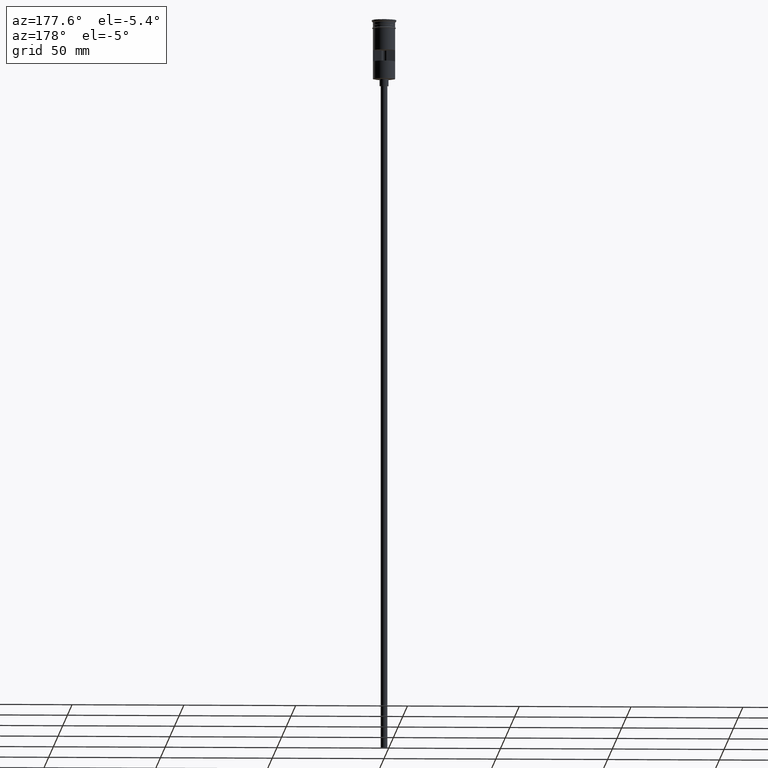
[diagram: clean part render]
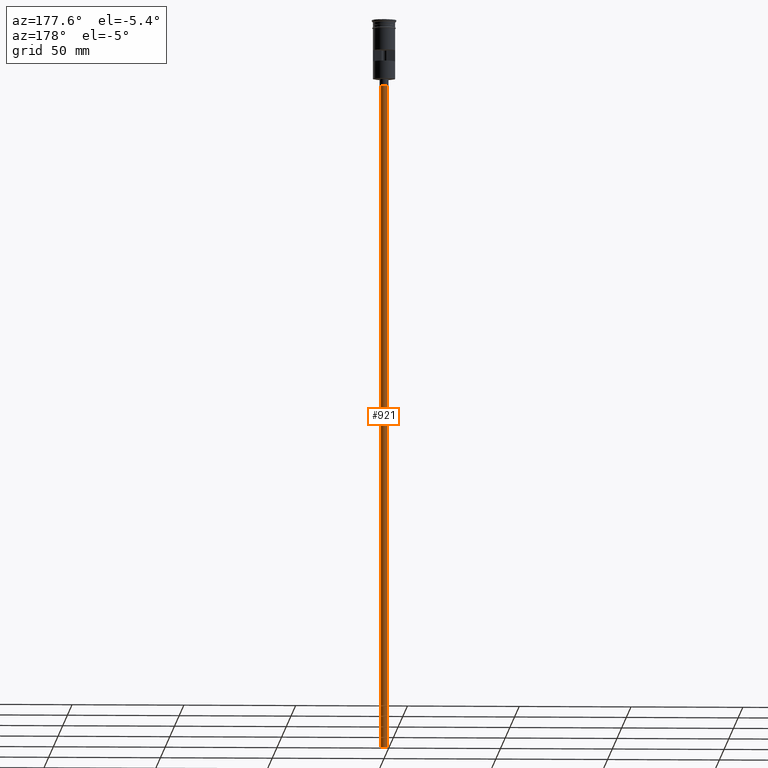
[diagram: same view with one face highlighted and labeled with its STEP entity id]
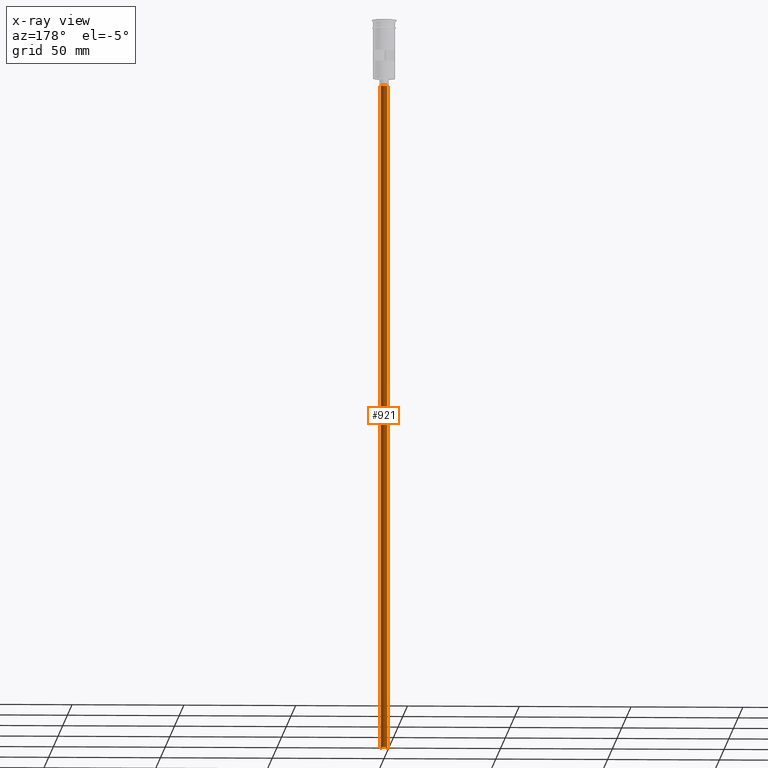
[diagram: x-ray of the same camera — body ghosted, the highlighted face saturated]
A machine part, auxiliary view. The second image highlights one B-rep face of the part: STEP entity #921.
The next image is the same camera in x-ray: the body ghosted, the highlighted face saturated — about 0% of this face is hidden behind the body in this view.
In plain terms, the highlighted cylindrical surface (edge-blend (fillet) strip) has radius 1.5 mm, axis along (-0, -0, 1).
Its self-contained STEP definition (entity closure, byte-faithful):
#111 = CIRCLE ( 'NONE', #1142, 1.500000000000000222 ) ;
#141 = EDGE_CURVE ( 'NONE', #1360, #478, #1465, .T. ) ;
#166 = LINE ( 'NONE', #314, #1190 ) ;
#171 = AXIS2_PLACEMENT_3D ( 'NONE', #843, #1106, #1605 ) ;
#262 = VERTEX_POINT ( 'NONE', #297 ) ;
#297 = CARTESIAN_POINT ( 'NONE',  ( 1.500000000000000222, 0.000000000000000000, -29.50000000000000000 ) ) ;
#314 = CARTESIAN_POINT ( 'NONE',  ( 1.500000000000000222, 0.000000000000000000, -326.5000000000000000 ) ) ;
#353 = EDGE_CURVE ( 'NONE', #427, #262, #166, .T. ) ;
#427 = VERTEX_POINT ( 'NONE', #1147 ) ;
#478 = VERTEX_POINT ( 'NONE', #900 ) ;
#485 = FACE_OUTER_BOUND ( 'NONE', #1410, .T. ) ;
#526 = ORIENTED_EDGE ( 'NONE', *, *, #353, .F. ) ;
#567 = CARTESIAN_POINT ( 'NONE',  ( -1.500000000000000222, 1.836970198721030181E-16, -326.5000000000000000 ) ) ;
#606 = DIRECTION ( 'NONE',  ( -1.000000000000000000, 0.000000000000000000, 0.000000000000000000 ) ) ;
#623 = CARTESIAN_POINT ( 'NONE',  ( -1.500000000000000222, 1.836970198721030181E-16, -326.5000000000000000 ) ) ;
#680 = DIRECTION ( 'NONE',  ( -1.000000000000000000, 0.000000000000000000, 0.000000000000000000 ) ) ;
#721 = CARTESIAN_POINT ( 'NONE',  ( 0.000000000000000000, 0.000000000000000000, -326.5000000000000000 ) ) ;
#843 = CARTESIAN_POINT ( 'NONE',  ( 0.000000000000000000, 0.000000000000000000, -326.5000000000000000 ) ) ;
#900 = CARTESIAN_POINT ( 'NONE',  ( -1.500000000000000222, 1.836970198721030181E-16, -29.50000000000000000 ) ) ;
#921 = ADVANCED_FACE ( 'NONE', ( #485 ), #1457, .T. ) ;
#928 = DIRECTION ( 'NONE',  ( -0.000000000000000000, -0.000000000000000000, 1.000000000000000000 ) ) ;
#942 = CARTESIAN_POINT ( 'NONE',  ( 0.000000000000000000, 0.000000000000000000, -29.50000000000000000 ) ) ;
#996 = DIRECTION ( 'NONE',  ( -0.000000000000000000, -0.000000000000000000, 1.000000000000000000 ) ) ;
#1052 = EDGE_CURVE ( 'NONE', #478, #262, #1265, .T. ) ;
#1106 = DIRECTION ( 'NONE',  ( -0.000000000000000000, -0.000000000000000000, 1.000000000000000000 ) ) ;
#1142 = AXIS2_PLACEMENT_3D ( 'NONE', #721, #1439, #606 ) ;
#1147 = CARTESIAN_POINT ( 'NONE',  ( 1.500000000000000222, 0.000000000000000000, -326.5000000000000000 ) ) ;
#1186 = AXIS2_PLACEMENT_3D ( 'NONE', #942, #1431, #680 ) ;
#1190 = VECTOR ( 'NONE', #928, 1000.000000000000000 ) ;
#1191 = ORIENTED_EDGE ( 'NONE', *, *, #1528, .F. ) ;
#1265 = CIRCLE ( 'NONE', #1186, 1.500000000000000222 ) ;
#1360 = VERTEX_POINT ( 'NONE', #567 ) ;
#1373 = ORIENTED_EDGE ( 'NONE', *, *, #1052, .T. ) ;
#1410 = EDGE_LOOP ( 'NONE', ( #1191, #1430, #1373, #526 ) ) ;
#1430 = ORIENTED_EDGE ( 'NONE', *, *, #141, .T. ) ;
#1431 = DIRECTION ( 'NONE',  ( 0.000000000000000000, 0.000000000000000000, -1.000000000000000000 ) ) ;
#1439 = DIRECTION ( 'NONE',  ( 0.000000000000000000, 0.000000000000000000, -1.000000000000000000 ) ) ;
#1457 = CYLINDRICAL_SURFACE ( 'NONE', #171, 1.500000000000000222 ) ;
#1465 = LINE ( 'NONE', #623, #1476 ) ;
#1476 = VECTOR ( 'NONE', #996, 1000.000000000000000 ) ;
#1528 = EDGE_CURVE ( 'NONE', #1360, #427, #111, .T. ) ;
#1605 = DIRECTION ( 'NONE',  ( 1.000000000000000000, 0.000000000000000000, 0.000000000000000000 ) ) ;